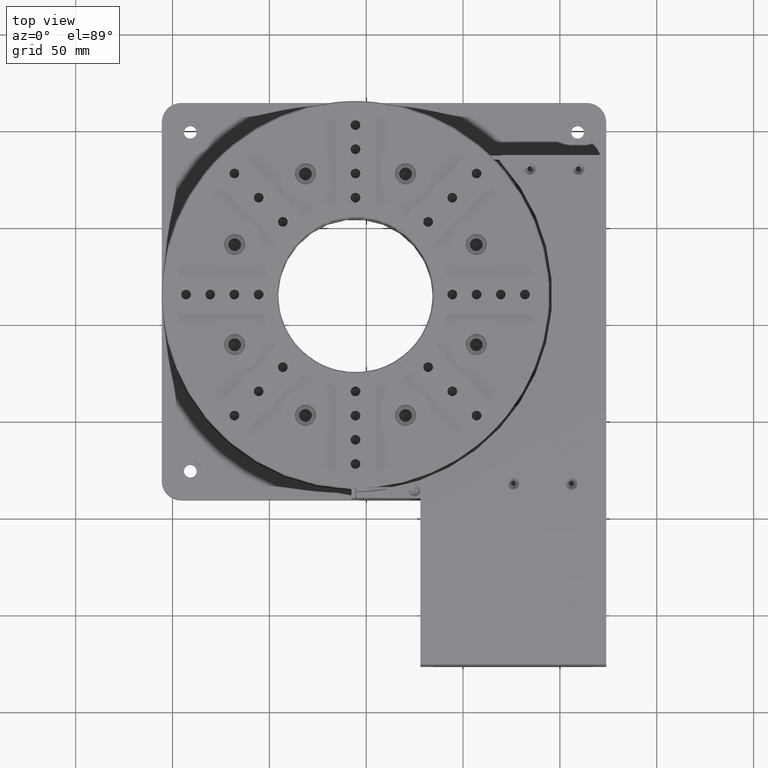
[diagram: clean part render]
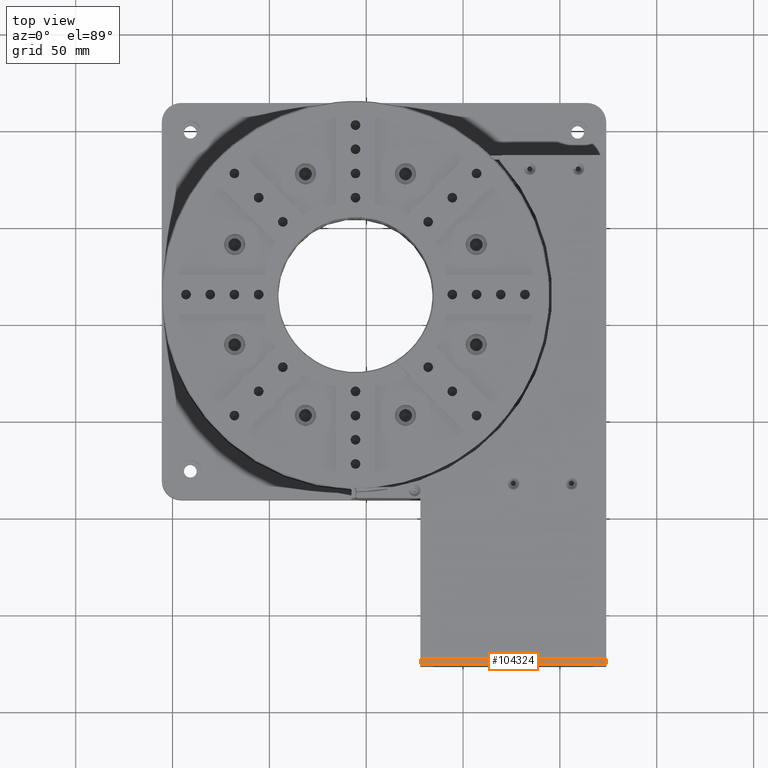
[diagram: same view with one face highlighted and labeled with its STEP entity id]
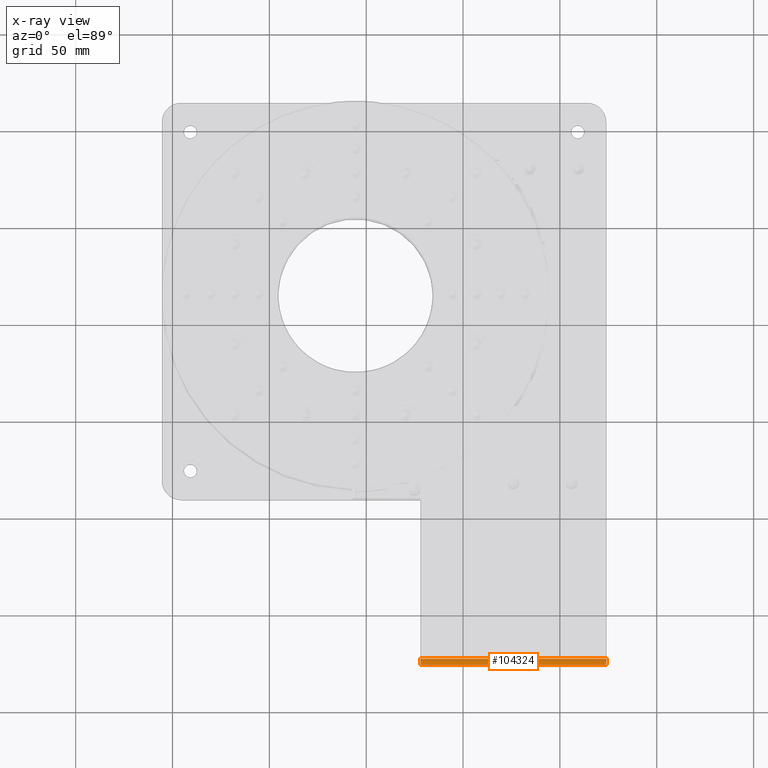
[diagram: x-ray of the same camera — body ghosted, the highlighted face saturated]
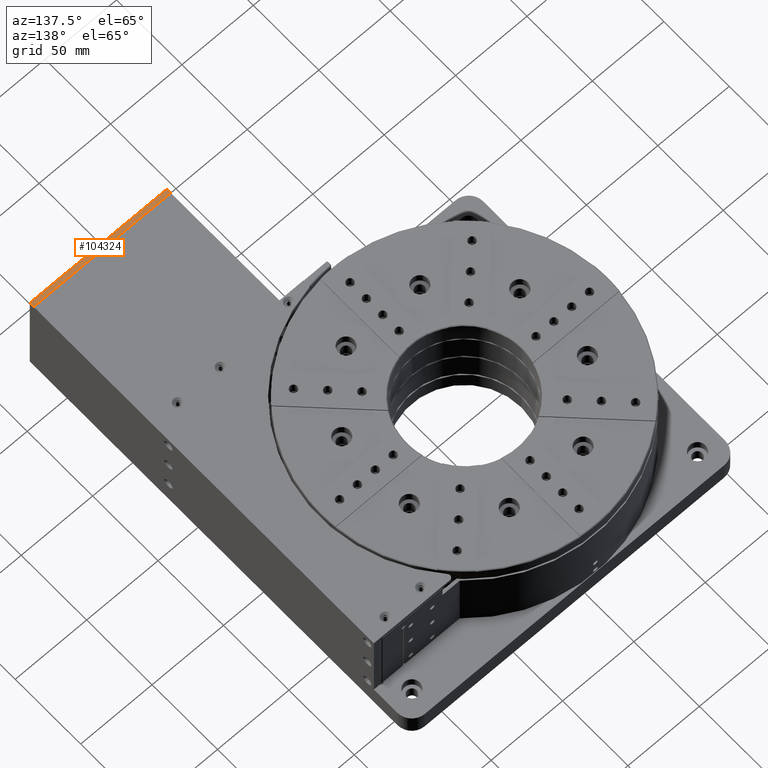
[diagram: same view with one face highlighted and labeled with its STEP entity id]
A machine part, top view. The second image highlights one B-rep face of the part: STEP entity #104324.
The next image is the same camera in x-ray: the body ghosted, the highlighted face saturated — about 0% of this face is hidden behind the body in this view.
A second angle (auxiliary view) of the same face is appended — the face is thin or edge-on in the first view.
In plain terms, the highlighted planar face has unit normal (0, 0, -1).
Its self-contained STEP definition (entity closure, byte-faithful):
#6605 = VERTEX_POINT ( 'NONE', #68824 ) ;
#11783 = CARTESIAN_POINT ( 'NONE',  ( 73.93183586153250531, -173.4683650978850267, 292.0000000000000000 ) ) ;
#23328 = VECTOR ( 'NONE', #160901, 1000.000000000000000 ) ;
#27244 = VERTEX_POINT ( 'NONE', #53352 ) ;
#34385 = DIRECTION ( 'NONE',  ( 1.225411726959333779E-16, 7.163025446029199451E-17, -1.000000000000000000 ) ) ;
#35986 = DIRECTION ( 'NONE',  ( 1.000000000000000000, 1.225411726959333779E-16, 1.225411726959333779E-16 ) ) ;
#36968 = EDGE_LOOP ( 'NONE', ( #147338, #97500, #93687, #58637 ) ) ;
#37005 = CARTESIAN_POINT ( 'NONE',  ( -22.06816413846749825, -173.4683650978850267, 292.0000000000000000 ) ) ;
#39420 = CARTESIAN_POINT ( 'NONE',  ( -22.06816413846749825, -176.4683650978849982, 292.0000000000000000 ) ) ;
#53352 = CARTESIAN_POINT ( 'NONE',  ( 73.93183586153250531, -173.4683650978850267, 292.0000000000000000 ) ) ;
#58637 = ORIENTED_EDGE ( 'NONE', *, *, #115697, .T. ) ;
#68824 = CARTESIAN_POINT ( 'NONE',  ( 73.93183586153250531, -176.4683650978849982, 292.0000000000000000 ) ) ;
#74526 = EDGE_CURVE ( 'NONE', #90659, #27244, #124197, .T. ) ;
#77198 = VECTOR ( 'NONE', #169741, 1000.000000000000000 ) ;
#78855 = CARTESIAN_POINT ( 'NONE',  ( -22.06816413846749825, -173.4683650978850267, 292.0000000000000000 ) ) ;
#90659 = VERTEX_POINT ( 'NONE', #161828 ) ;
#93501 = VECTOR ( 'NONE', #35986, 1000.000000000000000 ) ;
#93687 = ORIENTED_EDGE ( 'NONE', *, *, #74526, .F. ) ;
#95246 = VERTEX_POINT ( 'NONE', #39420 ) ;
#97500 = ORIENTED_EDGE ( 'NONE', *, *, #137173, .F. ) ;
#99855 = LINE ( 'NONE', #11783, #23328 ) ;
#100048 = EDGE_CURVE ( 'NONE', #95246, #6605, #166745, .T. ) ;
#104324 = ADVANCED_FACE ( 'NONE', ( #107938 ), #167063, .F. ) ;
#107938 = FACE_OUTER_BOUND ( 'NONE', #36968, .T. ) ;
#110605 = CARTESIAN_POINT ( 'NONE',  ( -22.06816413846749825, -173.4683650978850267, 292.0000000000000000 ) ) ;
#115697 = EDGE_CURVE ( 'NONE', #90659, #95246, #169678, .T. ) ;
#123138 = CARTESIAN_POINT ( 'NONE',  ( -22.06816413846749825, -176.4683650978849982, 292.0000000000000000 ) ) ;
#124197 = LINE ( 'NONE', #110605, #77198 ) ;
#137173 = EDGE_CURVE ( 'NONE', #27244, #6605, #99855, .T. ) ;
#147338 = ORIENTED_EDGE ( 'NONE', *, *, #100048, .T. ) ;
#152265 = DIRECTION ( 'NONE',  ( 1.225411726959333779E-16, -1.000000000000000000, -7.163025446029199451E-17 ) ) ;
#152513 = DIRECTION ( 'NONE',  ( 0.000000000000000000, -1.000000000000000000, -7.163025446029199451E-17 ) ) ;
#153904 = VECTOR ( 'NONE', #152265, 1000.000000000000000 ) ;
#160901 = DIRECTION ( 'NONE',  ( 1.225411726959333779E-16, -1.000000000000000000, -7.163025446029199451E-17 ) ) ;
#161828 = CARTESIAN_POINT ( 'NONE',  ( -22.06816413846749825, -173.4683650978850267, 292.0000000000000000 ) ) ;
#165151 = AXIS2_PLACEMENT_3D ( 'NONE', #78855, #34385, #152513 ) ;
#166745 = LINE ( 'NONE', #123138, #93501 ) ;
#167063 = PLANE ( 'NONE',  #165151 ) ;
#169678 = LINE ( 'NONE', #37005, #153904 ) ;
#169741 = DIRECTION ( 'NONE',  ( 1.000000000000000000, 1.225411726959333779E-16, 1.225411726959333779E-16 ) ) ;